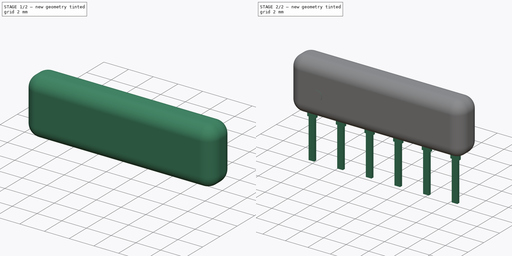
[diagram: build sequence overview — one tinted view per stage of 2, left to right]
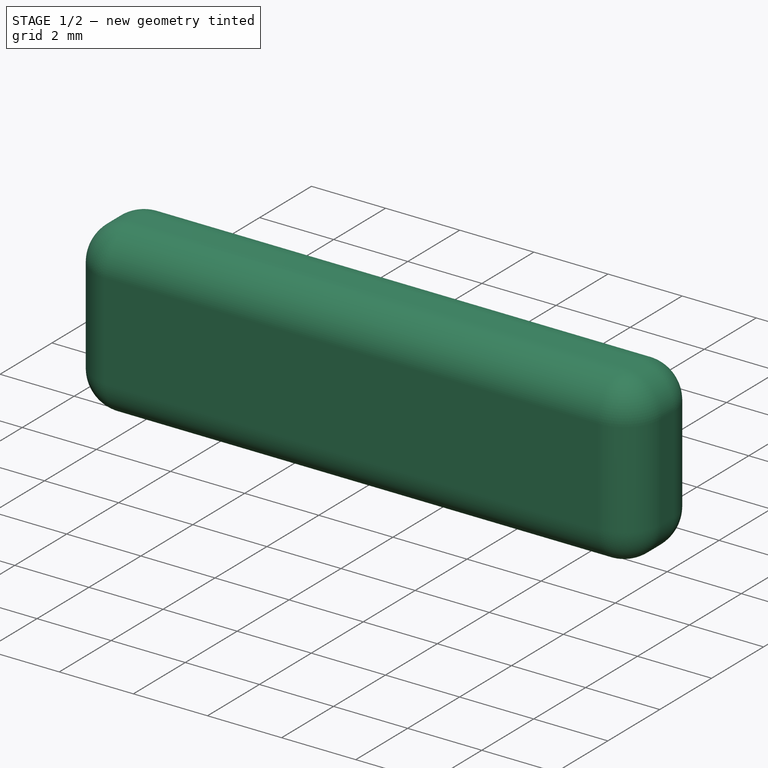
[diagram: stage 1 of 2 — iso view after this stage's code; geometry added in this stage tinted green]
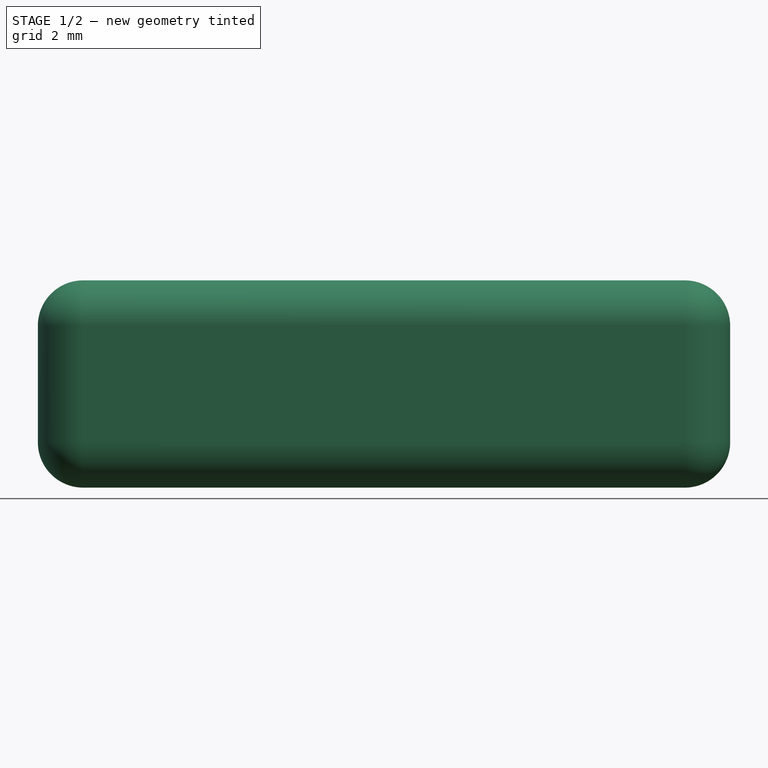
[diagram: stage 1 of 2 — front view after this stage's code; geometry added in this stage tinted green]
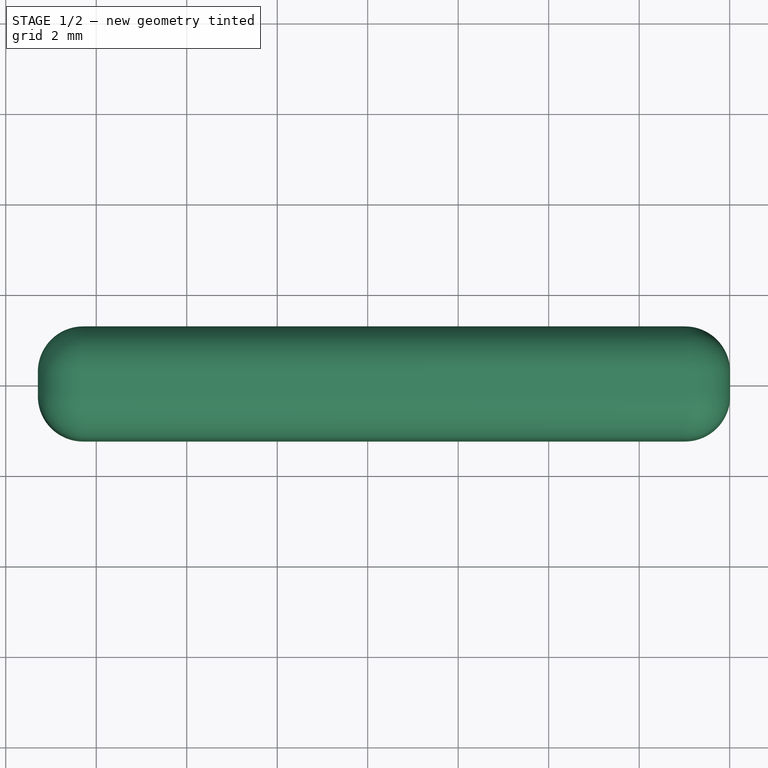
[diagram: stage 1 of 2 — top view after this stage's code; geometry added in this stage tinted green]
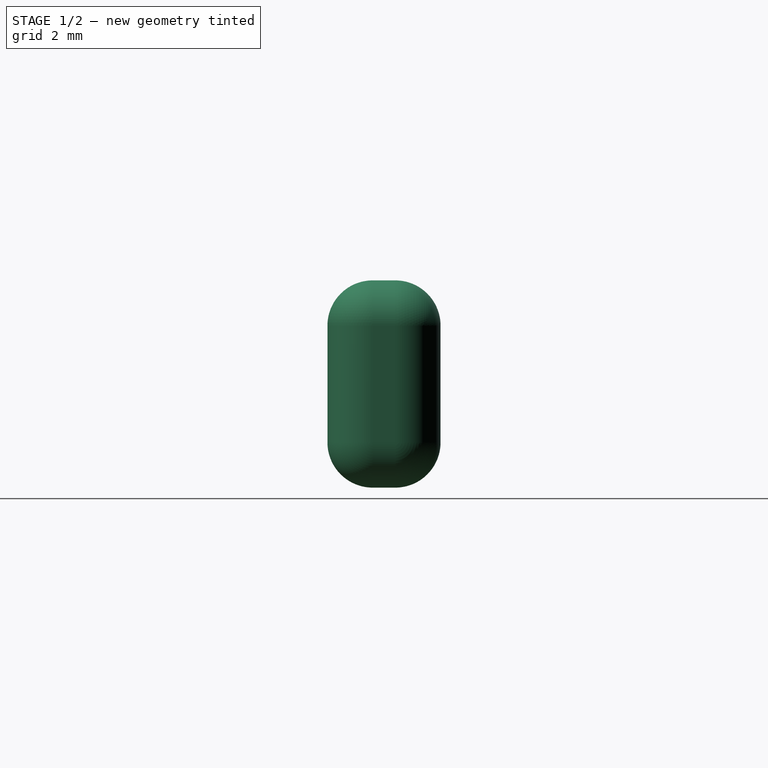
[diagram: stage 1 of 2 — right view after this stage's code; geometry added in this stage tinted green]
FCSTD DOCUMENT  (FreeCAD 0.16R6703 (Git))
Label: Resistor_Array_SIP6
License: All rights reserved
LicenseURL: http://en.wikipedia.org/wiki/All_rights_reserved
objects: Sketcher::SketchObject×3, PartDesign::Pad×3, PartDesign::Fillet×1, App::DocumentObjectGroup×1
note: 10 computed .brp shape members not serialized (recipe doc carries the construction recipe); baked Part::Feature solids carry a one-line shape summary decoded from their .brp

FEATURE [Sketcher::SketchObject] Sketch001
  Placement = pos=(0,0,0) rot=(1,0,0;1.5708rad)
  sketch-geometry (4):
    g0: LineSegment StartX=-1.29 StartY=1.5 StartZ=0 EndX=14.01 EndY=1.5 EndZ=0
    g1: LineSegment StartX=14.01 StartY=1.5 StartZ=0 EndX=14.01 EndY=6.08 EndZ=0
    g2: LineSegment StartX=14.01 StartY=6.08 StartZ=0 EndX=-1.29 EndY=6.08 EndZ=0
    g3: LineSegment StartX=-1.29 StartY=6.08 StartZ=0 EndX=-1.29 EndY=1.5 EndZ=0
  constraints (12):
    c: Coincident(g0,g1)
    c: Coincident(g1,g2)
    c: Coincident(g3,g0)
    c: Horizontal(g0)
    c: Horizontal(g2)
    c: Vertical(g1)
    c: Vertical(g3)
    c: DistanceX(g0,g-1) = 1.29
    c: DistanceY(g-1,g0) = 1.5
    c: DistanceY(g-1,g2) = 6.08
    c: DistanceX(g3,g1) = 15.3
    c: Coincident(g2,g3)
FEATURE [PartDesign::Pad] Pad001
  Length = 2.5
  Length2 = 100
  Midplane = true
  Placement = pos=(0,0,0) rot=(1,0,0;1.5708rad)
  Sketch = -> Sketch001
  Type = 0
FEATURE [PartDesign::Fillet] Fillet
  Base = -> Pad001 [Edge4,Edge7,Edge10,Edge12,Edge5,Edge8,Edge9,Edge3,Edge6,Edge11,Edge1,Edge2]
  Placement = pos=(0,0,0) rot=(1,0,0;1.5708rad)
  Radius = 1
FEATURE [App::DocumentObjectGroup] Group  label="Export"
  Group = -> [Fillet,Pad002,Pad]
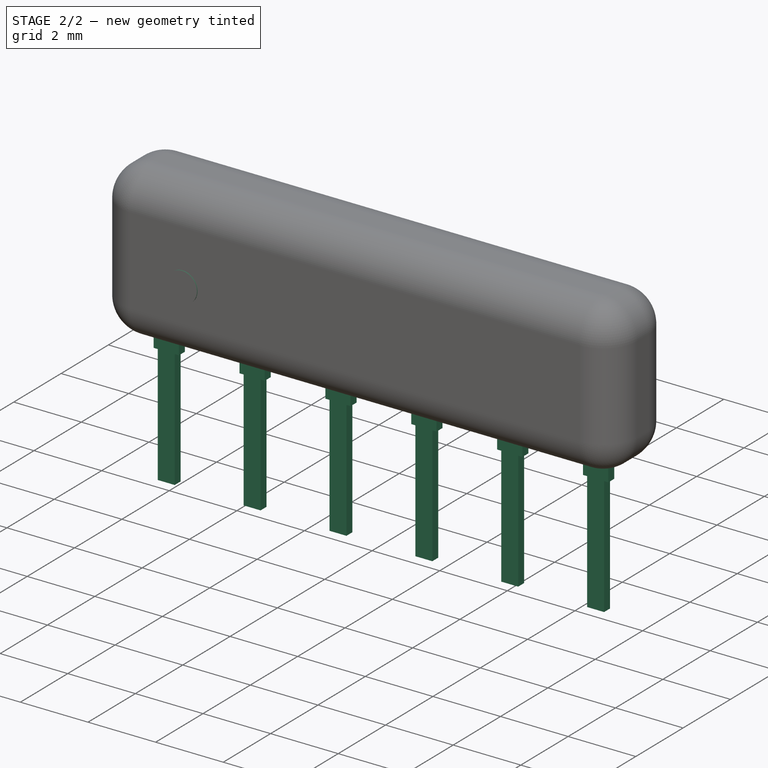
[diagram: stage 2 of 2 — iso view after this stage's code; geometry added in this stage tinted green]
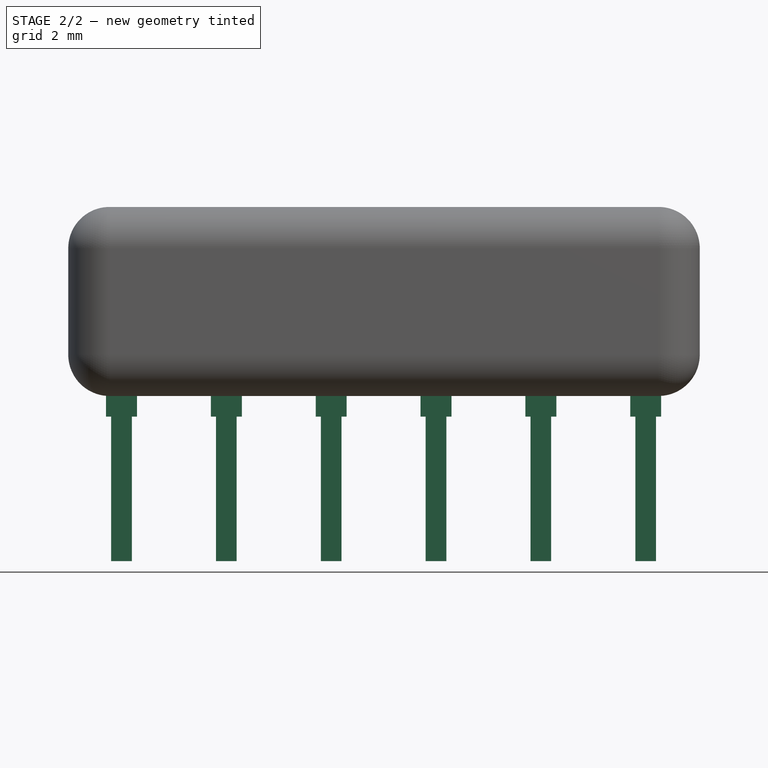
[diagram: stage 2 of 2 — front view after this stage's code; geometry added in this stage tinted green]
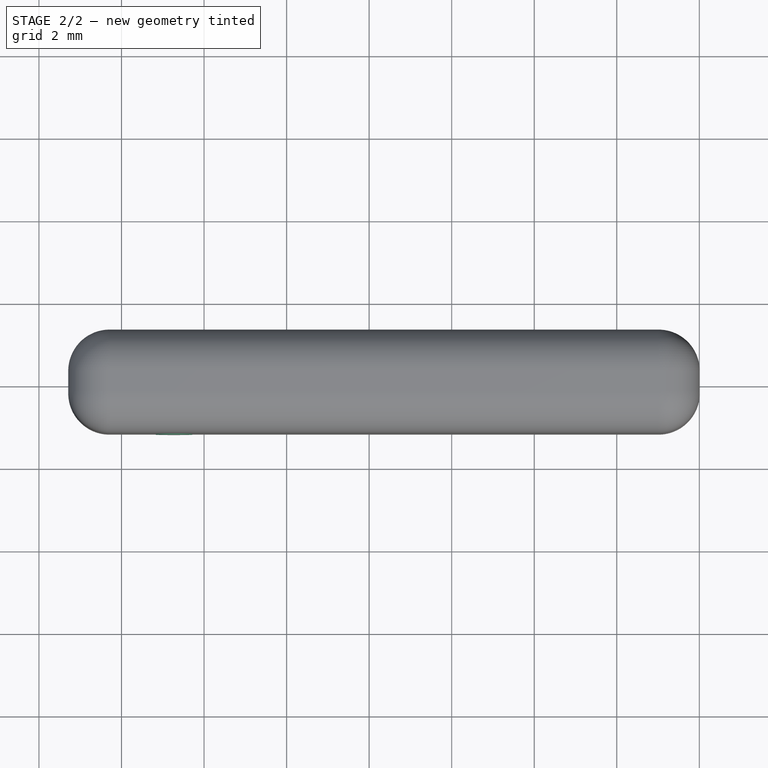
[diagram: stage 2 of 2 — top view after this stage's code; geometry added in this stage tinted green]
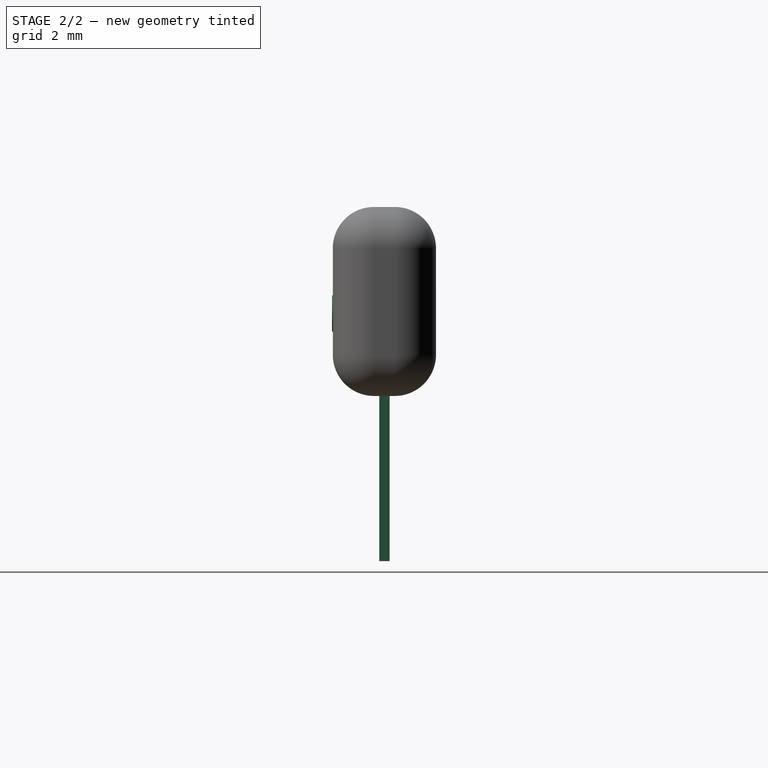
[diagram: stage 2 of 2 — right view after this stage's code; geometry added in this stage tinted green]
FEATURE [Sketcher::SketchObject] Sketch
  Placement = pos=(0,0,0) rot=(1,0,0;1.5708rad)
  sketch-geometry (54):
    g0: LineSegment StartX=0.25 StartY=-2.5 StartZ=0 EndX=-0.25 EndY=-2.5 EndZ=0
    g1: LineSegment StartX=-0.25 StartY=-2.5 StartZ=0 EndX=-0.25 EndY=1 EndZ=0
    g2: LineSegment StartX=0.25 StartY=1 StartZ=0 EndX=0.25 EndY=-2.5 EndZ=0
    g3: LineSegment StartX=0.375 StartY=1 StartZ=0 EndX=0.375 EndY=2 EndZ=0
    g4: LineSegment StartX=0.375 StartY=2 StartZ=0 EndX=-0.375 EndY=2 EndZ=0
    g5: LineSegment StartX=-0.375 StartY=2 StartZ=0 EndX=-0.375 EndY=1 EndZ=0
    g6: LineSegment StartX=-0.375 StartY=1 StartZ=0 EndX=-0.25 EndY=1 EndZ=0
    g7: LineSegment StartX=0.25 StartY=1 StartZ=0 EndX=0.375 EndY=1 EndZ=0
    g8: LineSegment StartX=2.79 StartY=-2.5 StartZ=0 EndX=2.29 EndY=-2.5 EndZ=0
    g9: LineSegment StartX=2.29 StartY=-2.5 StartZ=0 EndX=2.29 EndY=1 EndZ=0
    g10: LineSegment StartX=2.79 StartY=1 StartZ=0 EndX=2.79 EndY=-2.5 EndZ=0
    g11: LineSegment StartX=2.915 StartY=1 StartZ=0 EndX=2.915 EndY=2 EndZ=0
    g12: LineSegment StartX=2.915 StartY=2 StartZ=0 EndX=2.165 EndY=2 EndZ=0
    g13: LineSegment StartX=2.165 StartY=2 StartZ=0 EndX=2.165 EndY=1 EndZ=0
    g14: LineSegment StartX=2.165 StartY=1 StartZ=0 EndX=2.29 EndY=1 EndZ=0
    g15: LineSegment StartX=2.79 StartY=1 StartZ=0 EndX=2.915 EndY=1 EndZ=0
    g16: LineSegment [constr] StartX=0.25 StartY=-2.5 StartZ=0 EndX=2.79 EndY=-2.5 EndZ=0
    g17: LineSegment StartX=5.33 StartY=-2.5 StartZ=0 EndX=4.83 EndY=-2.5 EndZ=0
    g18: LineSegment StartX=4.83 StartY=-2.5 StartZ=0 EndX=4.83 EndY=1 EndZ=0
    g19: LineSegment StartX=5.33 StartY=1 StartZ=0 EndX=5.33 EndY=-2.5 EndZ=0
    g20: LineSegment StartX=5.455 StartY=1 StartZ=0 EndX=5.455 EndY=2 EndZ=0
    g21: LineSegment StartX=5.455 StartY=2 StartZ=0 EndX=4.705 EndY=2 EndZ=0
    g22: LineSegment StartX=4.705 StartY=2 StartZ=0 EndX=4.705 EndY=1 EndZ=0
    g23: LineSegment StartX=4.705 StartY=1 StartZ=0 EndX=4.83 EndY=1 EndZ=0
    g24: LineSegment StartX=5.33 StartY=1 StartZ=0 EndX=5.455 EndY=1 EndZ=0
    g25: LineSegment [constr] StartX=2.79 StartY=-2.5 StartZ=0 EndX=5.33 EndY=-2.5 EndZ=0
    g26: LineSegment StartX=7.87 StartY=-2.5 StartZ=0 EndX=7.37 EndY=-2.5 EndZ=0
    g27: LineSegment StartX=7.37 StartY=-2.5 StartZ=0 EndX=7.37 EndY=1 EndZ=0
    g28: LineSegment StartX=7.87 StartY=1 StartZ=0 EndX=7.87 EndY=-2.5 EndZ=0
    g29: LineSegment StartX=7.995 StartY=1 StartZ=0 EndX=7.995 EndY=2 EndZ=0
    g30: LineSegment StartX=7.995 StartY=2 StartZ=0 EndX=7.245 EndY=2 EndZ=0
    g31: LineSegment StartX=7.245 StartY=2 StartZ=0 EndX=7.245 EndY=1 EndZ=0
    g32: LineSegment StartX=7.245 StartY=1 StartZ=0 EndX=7.37 EndY=1 EndZ=0
    g33: LineSegment StartX=7.87 StartY=1 StartZ=0 EndX=7.995 EndY=1 EndZ=0
    g34: LineSegment [constr] StartX=5.33 StartY=-2.5 StartZ=0 EndX=7.87 EndY=-2.5 EndZ=0
    g35: LineSegment StartX=10.41 StartY=-2.5 StartZ=0 EndX=9.91 EndY=-2.5 EndZ=0
    g36: LineSegment StartX=9.91 StartY=-2.5 StartZ=0 EndX=9.91 EndY=1 EndZ=0
    g37: LineSegment StartX=10.41 StartY=1 StartZ=0 EndX=10.41 EndY=-2.5 EndZ=0
    g38: LineSegment StartX=10.535 StartY=1 StartZ=0 EndX=10.535 EndY=2 EndZ=0
    g39: LineSegment StartX=10.535 StartY=2 StartZ=0 EndX=9.785 EndY=2 EndZ=0
    g40: LineSegment StartX=9.785 StartY=2 StartZ=0 EndX=9.785 EndY=1 EndZ=0
    g41: LineSegment StartX=9.785 StartY=1 StartZ=0 EndX=9.91 EndY=1 EndZ=0
    g42: LineSegment StartX=10.41 StartY=1 StartZ=0 EndX=10.535 EndY=1 EndZ=0
    g43: LineSegment [constr] StartX=7.87 StartY=-2.5 StartZ=0 EndX=10.41 EndY=-2.5 EndZ=0
    g44: LineSegment StartX=12.95 StartY=-2.5 StartZ=0 EndX=12.45 EndY=-2.5 EndZ=0
    g45: LineSegment StartX=12.45 StartY=-2.5 StartZ=0 EndX=12.45 EndY=1 EndZ=0
    g46: LineSegment StartX=12.95 StartY=1 StartZ=0 EndX=12.95 EndY=-2.5 EndZ=0
    g47: LineSegment StartX=13.075 StartY=1 StartZ=0 EndX=13.075 EndY=2 EndZ=0
    g48: LineSegment StartX=13.075 StartY=2 StartZ=0 EndX=12.325 EndY=2 EndZ=0
    g49: LineSegment StartX=12.325 StartY=2 StartZ=0 EndX=12.325 EndY=1 EndZ=0
    g50: LineSegment StartX=12.325 StartY=1 StartZ=0 EndX=12.45 EndY=1 EndZ=0
    g51: LineSegment StartX=12.95 StartY=1 StartZ=0 EndX=13.075 EndY=1 EndZ=0
    g52: LineSegment [constr] StartX=10.41 StartY=-2.5 StartZ=0 EndX=12.95 EndY=-2.5 EndZ=0
    g53: LineSegment [constr] StartX=12.95 StartY=-2.5 StartZ=0 EndX=15.49 EndY=-2.5 EndZ=0
  constraints (157):
    c: Horizontal(g0)
    c: Vertical(g1)
    c: Vertical(g2)
    c: Coincident(g4,g5)
    c: Horizontal(g4)
    c: Vertical(g3)
    c: Vertical(g5)
    c: DistanceY(g3,g3) = 1
    c: DistanceY(g1,g1) = 3.5
    c: Equal(g2,g1)
    c: DistanceX(g4,g4) = 0.75
    c: DistanceX(g0,g0) = 0.5
    c: DistanceY(g0,g-1) = 2.5
    c: Coincident(g0,g2)
    c: Coincident(g1,g0)
    c: Coincident(g3,g4)
    c: Coincident(g6,g5)
    c: Coincident(g6,g1)
    c: Coincident(g7,g2)
    c: Coincident(g7,g3)
    c: Horizontal(g7)
    c: Equal(g6,g7)
    c: DistanceX(g0,g-1) = 0.25
    c: Horizontal(g6)
    c: Horizontal(g8)
    c: Vertical(g9)
    c: Vertical(g10)
    c: Coincident(g12,g13)
    c: Horizontal(g12)
    c: Vertical(g11)
    c: Vertical(g13)
    c: Equal(g3,g11) = 1
    c: Equal(g1,g9) = 3.5
    c: Equal(g10,g9)
    c: Equal(g4,g12) = 0.75
    c: Equal(g0,g8) = 0.5
    c: Coincident(g8,g10)
    c: Coincident(g9,g8)
    c: Coincident(g11,g12)
    c: Coincident(g14,g13)
    c: Coincident(g14,g9)
    c: Coincident(g15,g10)
    c: Coincident(g15,g11)
    c: Horizontal(g15)
    c: Equal(g14,g15)
    c: Horizontal(g14)
    c: Coincident(g0,g16)
    c: Coincident(g8,g16)
    c: Distance(g16) = 2.54
    c: Angle(g16) = 0
    c: Horizontal(g17)
    c: Vertical(g18)
    c: Vertical(g19)
    c: Coincident(g21,g22)
    c: Horizontal(g21)
    c: Vertical(g20)
    c: Vertical(g22)
    c: Equal(g3,g20) = 1
    c: Equal(g1,g18) = 3.5
    c: Equal(g19,g18)
    c: Equal(g4,g21) = 0.75
    c: Equal(g0,g17) = 0.5
    c: Coincident(g17,g19)
    c: Coincident(g18,g17)
    c: Coincident(g20,g21)
    c: Coincident(g23,g22)
    c: Coincident(g23,g18)
    c: Coincident(g24,g19)
    c: Coincident(g24,g20)
    c: Horizontal(g24)
    c: Equal(g23,g24)
    c: Horizontal(g23)
    c: Coincident(g8,g25)
    c: Coincident(g17,g25)
    c: Equal(g16,g25)
    c: Parallel(g25,g16)
    c: Horizontal(g26)
    c: Vertical(g27)
    c: Vertical(g28)
    c: Coincident(g30,g31)
    c: Horizontal(g30)
    c: Vertical(g29)
    c: Vertical(g31)
    c: Equal(g3,g29) = 1
    c: Equal(g1,g27) = 3.5
    c: Equal(g28,g27)
    c: Equal(g4,g30) = 0.75
    c: Equal(g0,g26) = 0.5
    c: Coincident(g26,g28)
    c: Coincident(g27,g26)
    c: Coincident(g29,g30)
    c: Coincident(g32,g31)
    c: Coincident(g32,g27)
    c: Coincident(g33,g28)
    c: Coincident(g33,g29)
    c: Horizontal(g33)
    c: Equal(g32,g33)
    c: Horizontal(g32)
    c: Coincident(g17,g34)
    c: Coincident(g26,g34)
    c: Equal(g16,g34)
    c: Parallel(g34,g16)
    c: Horizontal(g35)
    c: Vertical(g36)
    c: Vertical(g37)
    c: Coincident(g39,g40)
    c: Horizontal(g39)
    c: Vertical(g38)
    c: Vertical(g40)
    c: Equal(g3,g38) = 1
    c: Equal(g1,g36) = 3.5
    c: Equal(g37,g36)
    c: Equal(g4,g39) = 0.75
    c: Equal(g0,g35) = 0.5
    c: Coincident(g35,g37)
    c: Coincident(g36,g35)
    c: Coincident(g38,g39)
    c: Coincident(g41,g40)
    c: Coincident(g41,g36)
    c: Coincident(g42,g37)
    c: Coincident(g42,g38)
    c: Horizontal(g42)
    c: Equal(g41,g42)
    c: Horizontal(g41)
    c: Coincident(g26,g43)
    c: Coincident(g35,g43)
    c: Equal(g16,g43)
    c: Parallel(g43,g16)
    c: Horizontal(g44)
    c: Vertical(g45)
    c: Vertical(g46)
    c: Coincident(g48,g49)
    c: Horizontal(g48)
    c: Vertical(g47)
    c: Vertical(g49)
    c: Equal(g3,g47) = 1
    c: Equal(g1,g45) = 3.5
    c: Equal(g46,g45)
    c: Equal(g4,g48) = 0.75
    c: Equal(g0,g44) = 0.5
    c: Coincident(g44,g46)
    c: Coincident(g45,g44)
    c: Coincident(g47,g48)
    c: Coincident(g50,g49)
    c: Coincident(g50,g45)
    c: Coincident(g51,g46)
    c: Coincident(g51,g47)
    c: Horizontal(g51)
    c: Equal(g50,g51)
    c: Horizontal(g50)
    c: Coincident(g35,g52)
    c: Coincident(g44,g52)
    c: Equal(g16,g52)
    c: Parallel(g52,g16)
    c: Coincident(g44,g53)
    c: Equal(g16,g53)
    c: Parallel(g53,g16)
FEATURE [PartDesign::Pad] Pad
  Length = 0.25
  Length2 = 100
  Midplane = true
  Placement = pos=(0,0,0) rot=(1,0,0;1.5708rad)
  Sketch = -> Sketch
  Type = 0
FEATURE [Sketcher::SketchObject] Sketch002
  Placement = pos=(0,0,0) rot=(1,0,0;1.5708rad)
  sketch-geometry (1):
    g0: Circle CenterX=1.27 CenterY=3.5 CenterZ=0 NormalX=0 NormalY=0 NormalZ=1 Radius=0.440192
  constraints (2):
    c: DistanceX(g0,g-1) = -1.27
    c: DistanceY(g-1,g0) = 3.5
FEATURE [PartDesign::Pad] Pad002
  Length = 1.27
  Length2 = 100
  Placement = pos=(0,0,0) rot=(1,0,0;1.5708rad)
  Sketch = -> Sketch002
  Type = 0
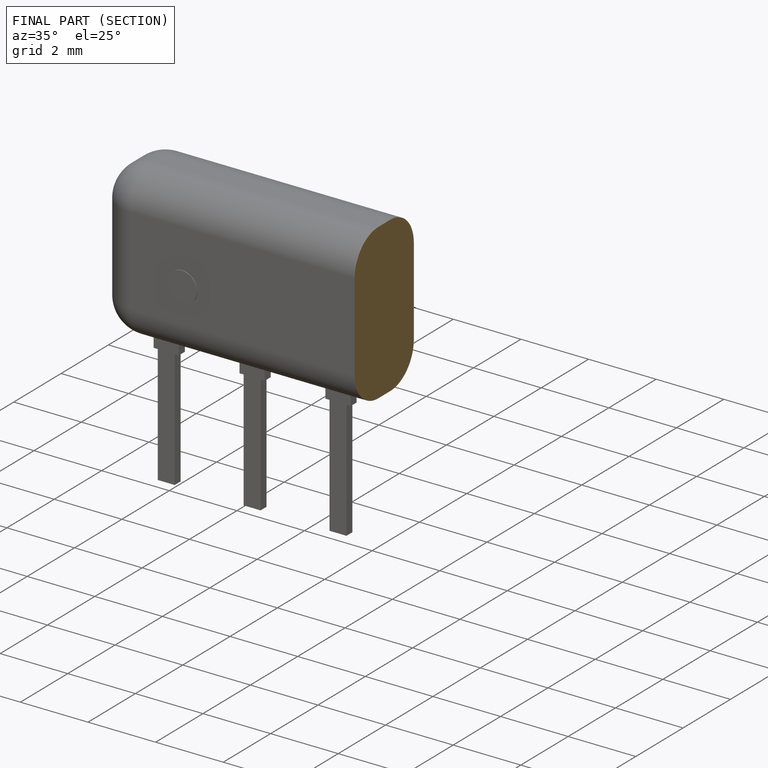
[diagram: finished part — half-section view (interior)]
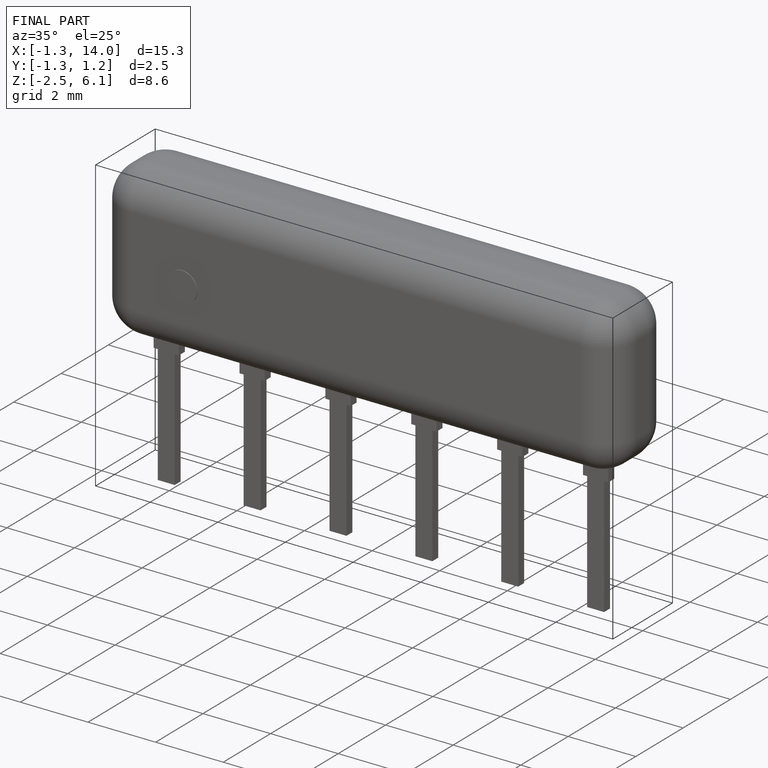
[diagram: finished part — iso view with bounding-box wireframe]
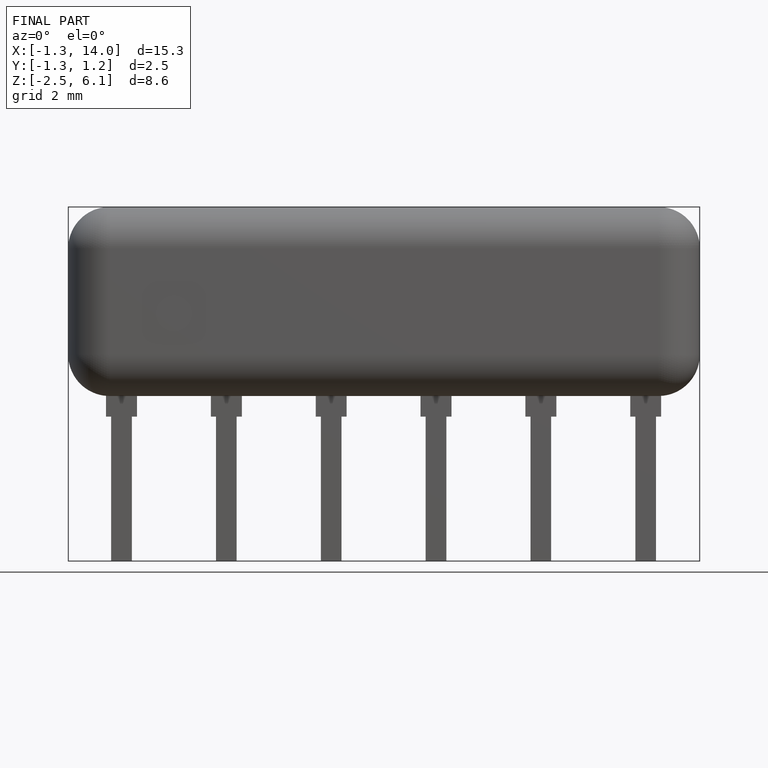
[diagram: finished part — front view with bounding-box wireframe]
